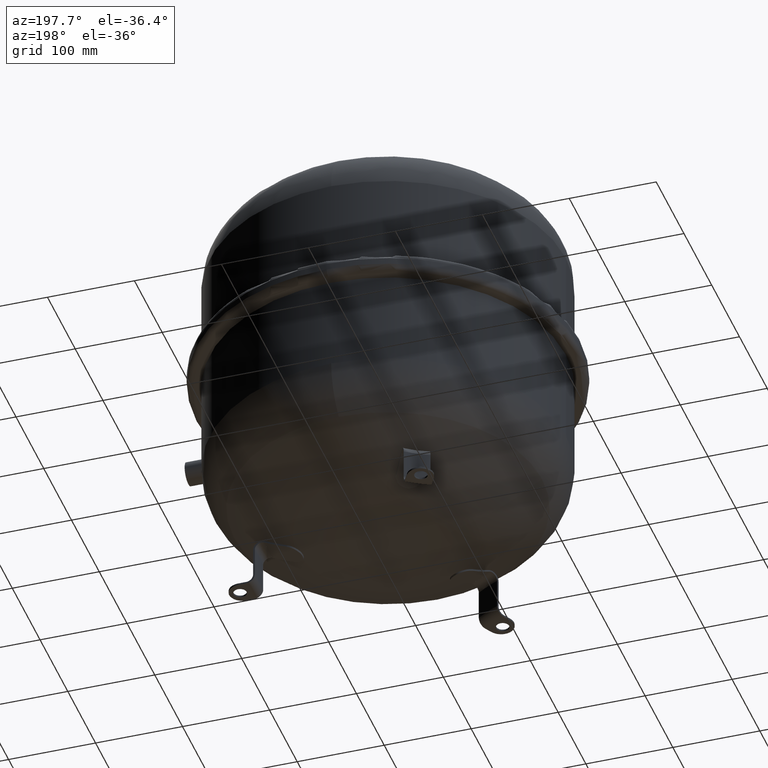
[diagram: clean part render]
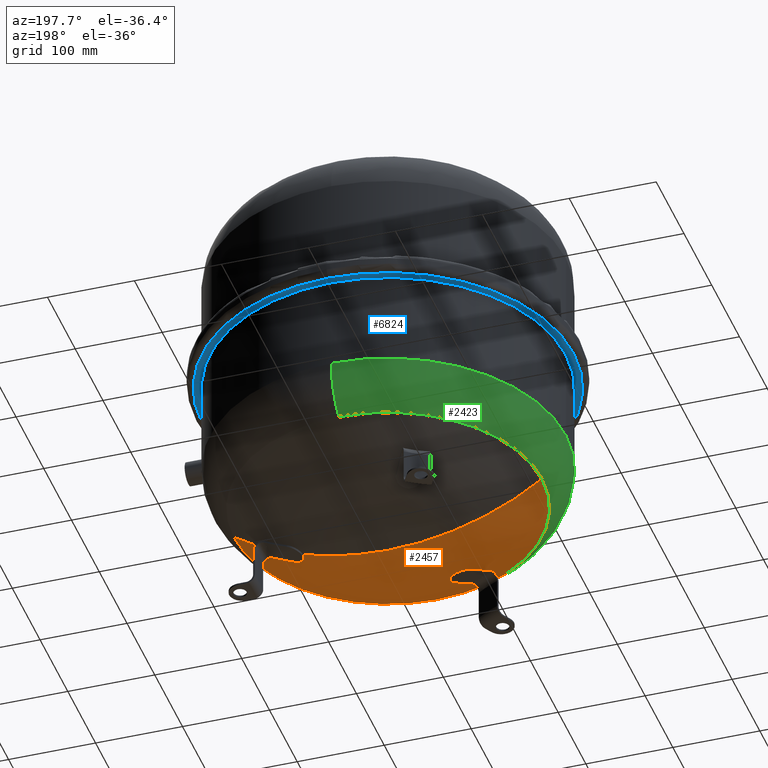
[diagram: same view with three faces highlighted in distinct colors, each labeled with its STEP entity id]
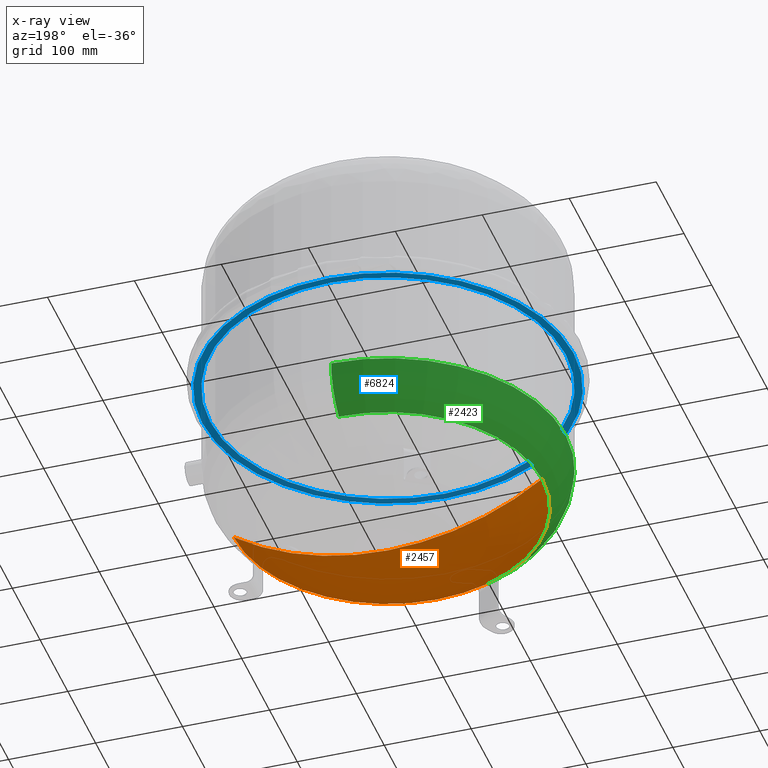
[diagram: x-ray of the same camera — body ghosted, the three highlighted faces saturated]
A machine part, auxiliary view with three faces highlighted in distinct colors.
The next image is the same camera in x-ray (body ghosted, the three faces saturated) — at least one of them is partly hidden behind the body in this view.
Their STEP definitions:

[orange] entity #2457 — the highlighted spherical surface has radius 302 mm.
#2379=CARTESIAN_POINT('',(0.0,-177.23305084745763,77.475061216033566));
#2380=VERTEX_POINT('',#2379);
#2405=CARTESIAN_POINT('',(-177.23305084745763,-1.055800E-014,77.475061216033595));
#2406=VERTEX_POINT('',#2405);
#2414=CARTESIAN_POINT('',(0.0,-1.055800E-014,77.475061216033595));
#2415=DIRECTION('',(0.0,0.0,1.0));
#2416=DIRECTION('',(-1.0,0.0,0.0));
#2417=AXIS2_PLACEMENT_3D('',#2414,#2415,#2416);
#2418=CIRCLE('',#2417,177.23305084745763);
#2419=EDGE_CURVE('',#2406,#2380,#2418,.T.);
#2424=CARTESIAN_POINT('',(0.0,-5.547650E-014,322.0));
#2425=DIRECTION('',(0.0,0.0,1.0));
#2426=DIRECTION('',(1.0,0.0,0.0));
#2427=AXIS2_PLACEMENT_3D('',#2424,#2425,#2426);
#2428=SPHERICAL_SURFACE('',#2427,302.00000000000006);
#2429=CARTESIAN_POINT('',(177.23305084745763,-5.547650E-014,77.475061216033609));
#2430=VERTEX_POINT('',#2429);
#2431=CARTESIAN_POINT('',(-1.849156E-014,-5.547650E-014,19.999999999999943));
#2432=VERTEX_POINT('',#2431);
#2433=CARTESIAN_POINT('',(0.0,-5.547650E-014,322.0));
#2434=DIRECTION('',(0.0,1.0,0.0));
#2435=DIRECTION('',(1.0,0.0,0.0));
#2436=AXIS2_PLACEMENT_3D('',#2433,#2434,#2435);
#2437=CIRCLE('',#2436,302.00000000000006);
#2438=EDGE_CURVE('',#2430,#2432,#2437,.T.);
#2439=ORIENTED_EDGE('',*,*,#2438,.F.);
#2440=CARTESIAN_POINT('',(0.0,-1.055800E-014,77.475061216033595));
#2441=DIRECTION('',(0.0,0.0,1.0));
#2442=DIRECTION('',(-1.0,0.0,0.0));
#2443=AXIS2_PLACEMENT_3D('',#2440,#2441,#2442);
#2444=CIRCLE('',#2443,177.23305084745763);
#2445=EDGE_CURVE('',#2380,#2430,#2444,.T.);
#2446=ORIENTED_EDGE('',*,*,#2445,.F.);
#2447=ORIENTED_EDGE('',*,*,#2419,.F.);
#2448=CARTESIAN_POINT('',(0.0,-5.547650E-014,322.0));
#2449=DIRECTION('',(0.0,-1.0,0.0));
#2450=DIRECTION('',(-1.0,0.0,0.0));
#2451=AXIS2_PLACEMENT_3D('',#2448,#2449,#2450);
#2452=CIRCLE('',#2451,302.00000000000006);
#2453=EDGE_CURVE('',#2406,#2432,#2452,.T.);
#2454=ORIENTED_EDGE('',*,*,#2453,.T.);
#2455=EDGE_LOOP('',(#2439,#2446,#2447,#2454));
#2456=FACE_OUTER_BOUND('',#2455,.T.);
#2457=ADVANCED_FACE('',(#2456),#2428,.T.);

[blue] entity #6824 — the highlighted planar face has unit normal (0, 0, -1).
#6518=CARTESIAN_POINT('',(-204.49999999999994,6.582477E-016,240.75));
#6519=VERTEX_POINT('',#6518);
#6528=CARTESIAN_POINT('',(204.49999999999994,-2.438495E-014,240.75));
#6529=VERTEX_POINT('',#6528);
#6530=CARTESIAN_POINT('',(0.0,6.582477E-016,240.75));
#6531=DIRECTION('',(0.0,0.0,-1.0));
#6532=DIRECTION('',(-1.0,0.0,0.0));
#6533=AXIS2_PLACEMENT_3D('',#6530,#6531,#6532);
#6534=CIRCLE('',#6533,204.49999999999994);
#6535=EDGE_CURVE('',#6519,#6529,#6534,.T.);
#6560=CARTESIAN_POINT('',(0.0,213.5,240.75));
#6561=VERTEX_POINT('',#6560);
#6571=CARTESIAN_POINT('',(-213.5,6.582477E-016,240.75));
#6572=VERTEX_POINT('',#6571);
#6573=CARTESIAN_POINT('',(0.0,6.582477E-016,240.75));
#6574=DIRECTION('',(0.0,0.0,-1.0));
#6575=DIRECTION('',(-1.0,0.0,0.0));
#6576=AXIS2_PLACEMENT_3D('',#6573,#6574,#6575);
#6577=CIRCLE('',#6576,213.5);
#6578=EDGE_CURVE('',#6572,#6561,#6577,.T.);
#6580=CARTESIAN_POINT('',(-2.614535E-014,-213.5,240.75));
#6581=VERTEX_POINT('',#6580);
#6582=CARTESIAN_POINT('',(0.0,6.582477E-016,240.75));
#6583=DIRECTION('',(0.0,0.0,-1.0));
#6584=DIRECTION('',(-1.0,0.0,0.0));
#6585=AXIS2_PLACEMENT_3D('',#6582,#6583,#6584);
#6586=CIRCLE('',#6585,213.5);
#6587=EDGE_CURVE('',#6581,#6572,#6586,.T.);
#6794=CARTESIAN_POINT('',(0.0,6.582477E-016,240.75));
#6795=DIRECTION('',(0.0,0.0,-1.0));
#6796=DIRECTION('',(-1.0,0.0,0.0));
#6797=AXIS2_PLACEMENT_3D('',#6794,#6795,#6796);
#6798=CIRCLE('',#6797,213.5);
#6799=EDGE_CURVE('',#6561,#6581,#6798,.T.);
#6804=CARTESIAN_POINT('',(-209.0,6.582477E-016,240.75));
#6805=DIRECTION('',(0.0,0.0,-1.0));
#6806=DIRECTION('',(0.0,1.0,0.0));
#6807=AXIS2_PLACEMENT_3D('',#6804,#6805,#6806);
#6808=PLANE('',#6807);
#6809=ORIENTED_EDGE('',*,*,#6578,.T.);
#6810=ORIENTED_EDGE('',*,*,#6799,.T.);
#6811=ORIENTED_EDGE('',*,*,#6587,.T.);
#6812=EDGE_LOOP('',(#6809,#6810,#6811));
#6813=FACE_OUTER_BOUND('',#6812,.T.);
#6814=ORIENTED_EDGE('',*,*,#6535,.F.);
#6815=CARTESIAN_POINT('',(0.0,6.582477E-016,240.75));
#6816=DIRECTION('',(0.0,0.0,-1.0));
#6817=DIRECTION('',(-1.0,0.0,0.0));
#6818=AXIS2_PLACEMENT_3D('',#6815,#6816,#6817);
#6819=CIRCLE('',#6818,204.49999999999994);
#6820=EDGE_CURVE('',#6529,#6519,#6819,.T.);
#6821=ORIENTED_EDGE('',*,*,#6820,.F.);
#6822=EDGE_LOOP('',(#6814,#6821));
#6823=FACE_BOUND('',#6822,.T.);
#6824=ADVANCED_FACE('',(#6813,#6823),#6808,.T.);

[green] entity #2423 — the highlighted toroidal blend (fillet) surface has major radius 138.5 mm and minor (blend) radius 66 mm.
#2328=CARTESIAN_POINT('',(-204.50000000000003,-2.037462E-014,130.91428624829121));
#2329=VERTEX_POINT('',#2328);
#2353=CARTESIAN_POINT('',(-2.504320E-014,204.5,130.91428624829123));
#2354=VERTEX_POINT('',#2353);
#2362=CARTESIAN_POINT('',(0.0,-2.037462E-014,130.91428624829121));
#2363=DIRECTION('',(0.0,0.0,1.0));
#2364=DIRECTION('',(-1.0,0.0,0.0));
#2365=AXIS2_PLACEMENT_3D('',#2362,#2363,#2364);
#2366=CIRCLE('',#2365,204.50000000000003);
#2367=EDGE_CURVE('',#2354,#2329,#2366,.T.);
#2372=CARTESIAN_POINT('',(0.0,-2.037462E-014,130.91428624829121));
#2373=DIRECTION('',(0.0,-1.836970E-016,1.0));
#2374=DIRECTION('',(0.0,-1.0,0.0));
#2375=AXIS2_PLACEMENT_3D('',#2372,#2373,#2374);
#2376=TOROIDAL_SURFACE('',#2375,138.5,66.0);
#2377=CARTESIAN_POINT('',(0.0,-204.50000000000006,130.91428624829118));
#2378=VERTEX_POINT('',#2377);
#2379=CARTESIAN_POINT('',(0.0,-177.23305084745763,77.475061216033566));
#2380=VERTEX_POINT('',#2379);
#2381=CARTESIAN_POINT('',(0.0,-138.50000000000003,130.91428624829118));
#2382=DIRECTION('',(1.0,0.0,0.0));
#2383=DIRECTION('',(0.0,-1.0,0.0));
#2384=AXIS2_PLACEMENT_3D('',#2381,#2382,#2383);
#2385=CIRCLE('',#2384,66.0);
#2386=EDGE_CURVE('',#2378,#2380,#2385,.T.);
#2387=ORIENTED_EDGE('',*,*,#2386,.F.);
#2388=CARTESIAN_POINT('',(0.0,-2.037462E-014,130.91428624829121));
#2389=DIRECTION('',(0.0,0.0,1.0));
#2390=DIRECTION('',(-1.0,0.0,0.0));
#2391=AXIS2_PLACEMENT_3D('',#2388,#2389,#2390);
#2392=CIRCLE('',#2391,204.50000000000003);
#2393=EDGE_CURVE('',#2329,#2378,#2392,.T.);
#2394=ORIENTED_EDGE('',*,*,#2393,.F.);
#2395=ORIENTED_EDGE('',*,*,#2367,.F.);
#2396=CARTESIAN_POINT('',(-2.170407E-014,177.23305084745763,77.475061216033623));
#2397=VERTEX_POINT('',#2396);
#2398=CARTESIAN_POINT('',(-1.696080E-014,138.49999999999997,130.91428624829123));
#2399=DIRECTION('',(-1.0,0.0,0.0));
#2400=DIRECTION('',(0.0,1.0,0.0));
#2401=AXIS2_PLACEMENT_3D('',#2398,#2399,#2400);
#2402=CIRCLE('',#2401,66.0);
#2403=EDGE_CURVE('',#2354,#2397,#2402,.T.);
#2404=ORIENTED_EDGE('',*,*,#2403,.T.);
#2405=CARTESIAN_POINT('',(-177.23305084745763,-1.055800E-014,77.475061216033595));
#2406=VERTEX_POINT('',#2405);
#2407=CARTESIAN_POINT('',(0.0,-1.055800E-014,77.475061216033595));
#2408=DIRECTION('',(0.0,0.0,1.0));
#2409=DIRECTION('',(-1.0,0.0,0.0));
#2410=AXIS2_PLACEMENT_3D('',#2407,#2408,#2409);
#2411=CIRCLE('',#2410,177.23305084745763);
#2412=EDGE_CURVE('',#2397,#2406,#2411,.T.);
#2413=ORIENTED_EDGE('',*,*,#2412,.T.);
#2414=CARTESIAN_POINT('',(0.0,-1.055800E-014,77.475061216033595));
#2415=DIRECTION('',(0.0,0.0,1.0));
#2416=DIRECTION('',(-1.0,0.0,0.0));
#2417=AXIS2_PLACEMENT_3D('',#2414,#2415,#2416);
#2418=CIRCLE('',#2417,177.23305084745763);
#2419=EDGE_CURVE('',#2406,#2380,#2418,.T.);
#2420=ORIENTED_EDGE('',*,*,#2419,.T.);
#2421=EDGE_LOOP('',(#2387,#2394,#2395,#2404,#2413,#2420));
#2422=FACE_OUTER_BOUND('',#2421,.T.);
#2423=ADVANCED_FACE('',(#2422),#2376,.T.);